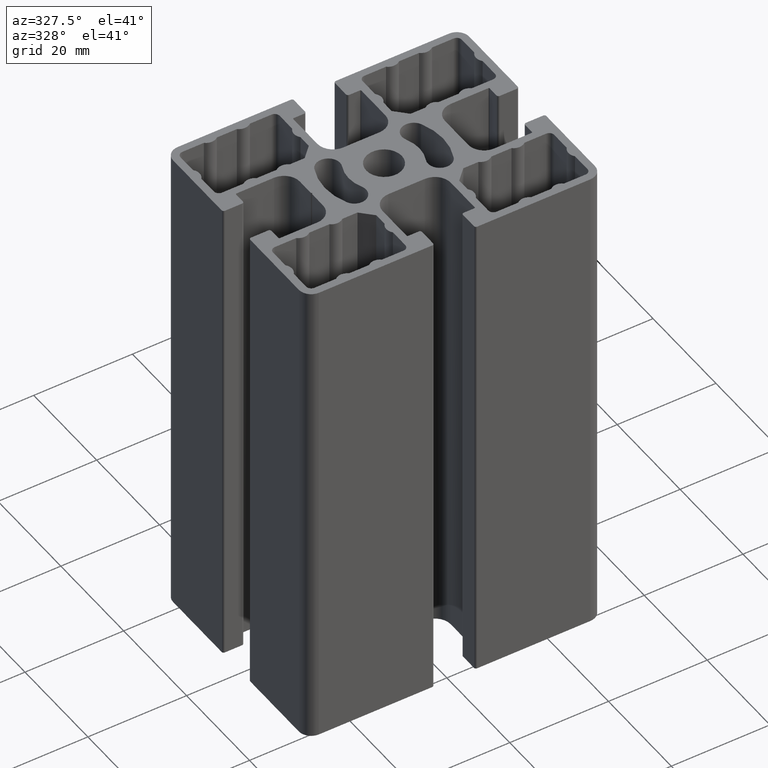
[diagram: clean part render]
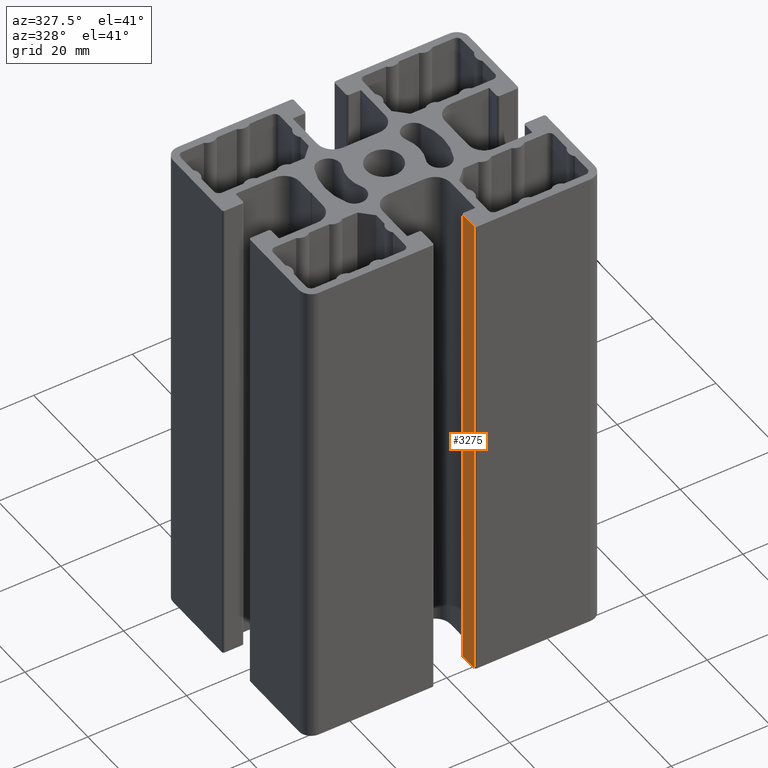
[diagram: same view with one face highlighted and labeled with its STEP entity id]
A machine part, auxiliary view. The second image highlights one B-rep face of the part: STEP entity #3275.
In plain terms, the highlighted planar face has unit normal (-1, 0, 0).
Its self-contained STEP definition (entity closure, byte-faithful):
#85=PLANE('',#3555);
#226=FACE_OUTER_BOUND('',#393,.T.);
#393=EDGE_LOOP('',(#2543,#2544,#2545,#2546));
#682=LINE('',#5315,#1011);
#683=LINE('',#5318,#1012);
#684=LINE('',#5320,#1013);
#685=LINE('',#5321,#1014);
#1011=VECTOR('',#4328,100.);
#1012=VECTOR('',#4331,3.49999999642989);
#1013=VECTOR('',#4332,3.49999999642989);
#1014=VECTOR('',#4333,100.);
#1504=VERTEX_POINT('',#5311);
#1505=VERTEX_POINT('',#5313);
#1506=VERTEX_POINT('',#5317);
#1507=VERTEX_POINT('',#5319);
#1942=EDGE_CURVE('',#1504,#1505,#682,.T.);
#1943=EDGE_CURVE('',#1506,#1504,#683,.T.);
#1944=EDGE_CURVE('',#1507,#1505,#684,.T.);
#1945=EDGE_CURVE('',#1506,#1507,#685,.T.);
#2543=ORIENTED_EDGE('',*,*,#1943,.T.);
#2544=ORIENTED_EDGE('',*,*,#1942,.T.);
#2545=ORIENTED_EDGE('',*,*,#1944,.F.);
#2546=ORIENTED_EDGE('',*,*,#1945,.F.);
#3275=ADVANCED_FACE('',(#226),#85,.T.);
#3555=AXIS2_PLACEMENT_3D('',#5316,#4329,#4330);
#4328=DIRECTION('',(0.,0.,1.));
#4329=DIRECTION('center_axis',(-1.,0.,0.));
#4330=DIRECTION('ref_axis',(0.,-1.,0.));
#4331=DIRECTION('',(0.,-1.,0.));
#4332=DIRECTION('',(0.,-1.,0.));
#4333=DIRECTION('',(0.,0.,1.));
#5311=CARTESIAN_POINT('',(4.14999999576708,-22.099999977458,0.));
#5313=CARTESIAN_POINT('',(4.14999999576708,-22.099999977458,100.));
#5315=CARTESIAN_POINT('',(4.14999999576708,-22.099999977458,0.));
#5316=CARTESIAN_POINT('Origin',(4.14999999576708,-18.5999999810281,0.));
#5317=CARTESIAN_POINT('',(4.14999999576708,-18.5999999810281,0.));
#5318=CARTESIAN_POINT('',(4.14999999576708,-18.5999999810281,0.));
#5319=CARTESIAN_POINT('',(4.14999999576708,-18.5999999810281,100.));
#5320=CARTESIAN_POINT('',(4.14999999576708,-18.5999999810281,100.));
#5321=CARTESIAN_POINT('',(4.14999999576708,-18.5999999810281,0.));